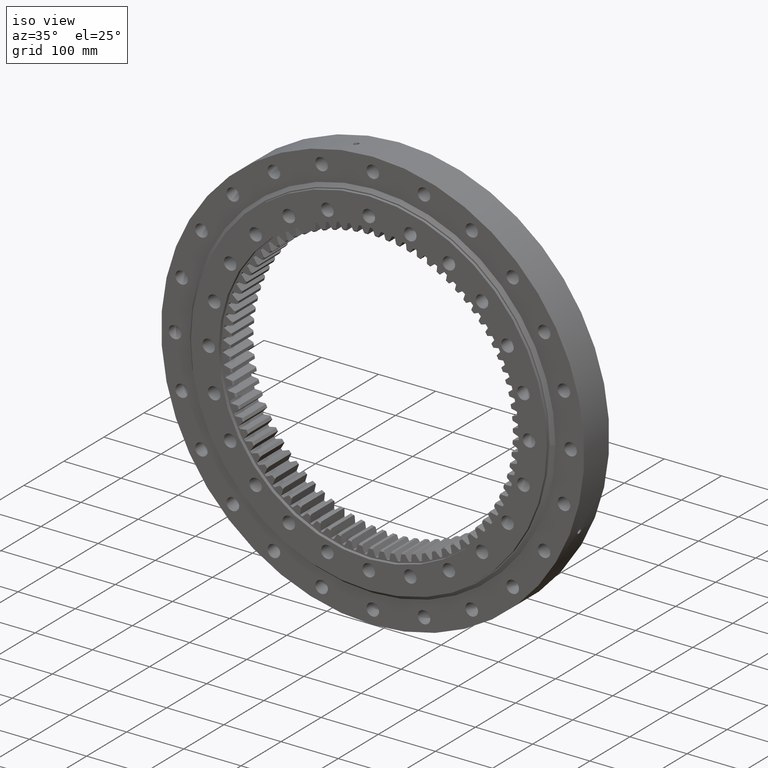
[diagram: clean part render]
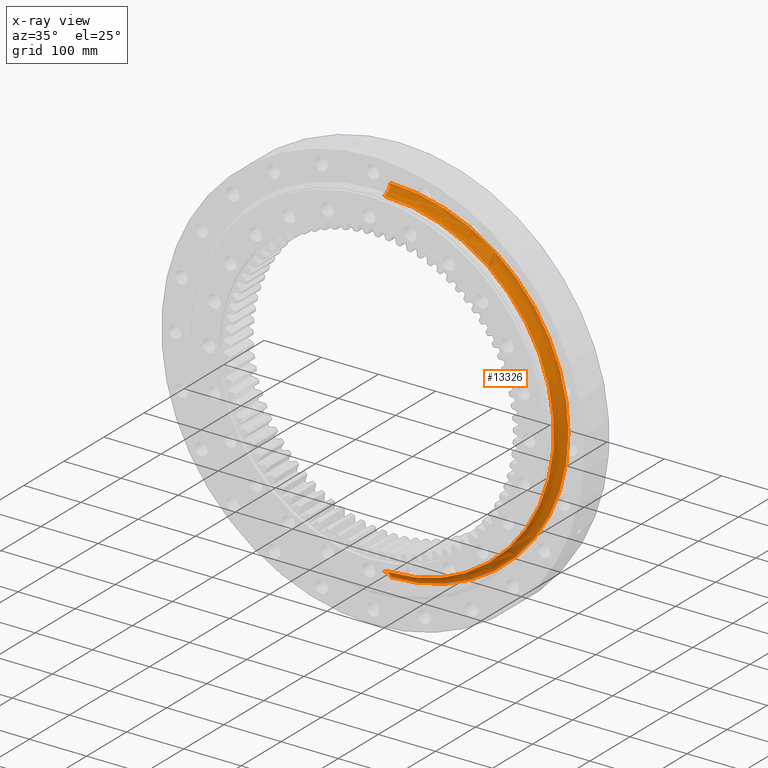
[diagram: x-ray — body ghosted, one internal face saturated and labeled with its STEP entity id]
A machine part, iso view, then the same camera in x-ray: the body is ghosted and one INTERNAL B-rep face — a face not visible from any outside direction — is saturated and labeled: STEP entity #13326.
In plain terms, the highlighted toroidal blend (fillet) surface has major radius 313 mm and minor (blend) radius 15.875 mm.
Its self-contained STEP definition (entity closure, byte-faithful):
#32 = VERTEX_POINT ( 'NONE', #18002 ) ;
#1731 = DIRECTION ( 'NONE',  ( 5.551115123125783900E-017, 6.684600557691706300E-017, 1.000000000000000000 ) ) ;
#1888 = AXIS2_PLACEMENT_3D ( 'NONE', #2487, #2452, #2404 ) ;
#2404 = DIRECTION ( 'NONE',  ( 7.914688832368750700E-017, 1.000000000000000000, 0.0000000000000000000 ) ) ;
#2452 = DIRECTION ( 'NONE',  ( 1.000000000000000000, -7.914688832368751900E-017, -5.551115123125783900E-017 ) ) ;
#2487 = CARTESIAN_POINT ( 'NONE',  ( 1.737499033538370300E-014, 2.765215221798461300E-014, 313.0000000000000000 ) ) ;
#2694 = CIRCLE ( 'NONE', #22000, 297.1249999999999400 ) ;
#3042 = DIRECTION ( 'NONE',  ( -7.914688832368751900E-017, -1.000000000000000000, 6.617654413443253200E-017 ) ) ;
#3116 = CARTESIAN_POINT ( 'NONE',  ( 1.250158783144392700E-015, 15.79542556406779500, -1.891470440542587500E-015 ) ) ;
#3272 = EDGE_CURVE ( 'NONE', #32, #13583, #2694, .T. ) ;
#3316 = CIRCLE ( 'NONE', #1888, 15.87500000000009800 ) ;
#3891 = EDGE_CURVE ( 'NONE', #13583, #18331, #3316, .T. ) ;
#4010 = AXIS2_PLACEMENT_3D ( 'NONE', #21204, #18400, #21348 ) ;
#4271 = CARTESIAN_POINT ( 'NONE',  ( -5.570643514869586400E-014, -1.377436441017014900E-014, -313.0000000000000000 ) ) ;
#4512 = DIRECTION ( 'NONE',  ( -1.000000000000000000, 7.914688832368753200E-017, 1.779758311459931700E-016 ) ) ;
#4601 = DIRECTION ( 'NONE',  ( 1.779758311459933000E-016, 0.0000000000000000000, 1.000000000000000000 ) ) ;
#4741 = ORIENTED_EDGE ( 'NONE', *, *, #3272, .F. ) ;
#5124 = ORIENTED_EDGE ( 'NONE', *, *, #18685, .T. ) ;
#5260 = CARTESIAN_POINT ( 'NONE',  ( 1.649375080958747900E-014, 8.883020697553645700E-015, 297.1249999999999400 ) ) ;
#5267 = ORIENTED_EDGE ( 'NONE', *, *, #19107, .T. ) ;
#5368 = CIRCLE ( 'NONE', #9497, 311.4125000000000200 ) ;
#5495 = ORIENTED_EDGE ( 'NONE', *, *, #3891, .F. ) ;
#8703 = CARTESIAN_POINT ( 'NONE',  ( -5.417373973360730100E-014, 15.79542556406777400, -311.4125000000005300 ) ) ;
#9138 = TOROIDAL_SURFACE ( 'NONE', #4010, 313.0000000000000000, 15.87500000000009800 ) ;
#9250 = CIRCLE ( 'NONE', #17228, 15.87500000000008300 ) ;
#9291 = FACE_OUTER_BOUND ( 'NONE', #10211, .T. ) ;
#9497 = AXIS2_PLACEMENT_3D ( 'NONE', #3116, #3042, #1731 ) ;
#10211 = EDGE_LOOP ( 'NONE', ( #4741, #5124, #5267, #5495 ) ) ;
#13326 = ADVANCED_FACE ( 'NONE', ( #9291 ), #9138, .F. ) ;
#13383 = VERTEX_POINT ( 'NONE', #8703 ) ;
#13583 = VERTEX_POINT ( 'NONE', #5260 ) ;
#15358 = CARTESIAN_POINT ( 'NONE',  ( 1.853702516594850500E-014, 15.79542556406781500, 311.4125000000005300 ) ) ;
#17228 = AXIS2_PLACEMENT_3D ( 'NONE', #4271, #4512, #4601 ) ;
#18002 = CARTESIAN_POINT ( 'NONE',  ( -5.288106882925321000E-014, 8.883020697553682000E-015, -297.1249999999999400 ) ) ;
#18331 = VERTEX_POINT ( 'NONE', #15358 ) ;
#18400 = DIRECTION ( 'NONE',  ( -7.914688832368751900E-017, -1.000000000000000000, 6.617654413443253200E-017 ) ) ;
#18637 = DIRECTION ( 'NONE',  ( 1.000000000000000000, -7.914688832368750700E-017, 0.0000000000000000000 ) ) ;
#18662 = DIRECTION ( 'NONE',  ( -7.914688832368751900E-017, -1.000000000000000000, 6.617654413443253200E-017 ) ) ;
#18685 = EDGE_CURVE ( 'NONE', #32, #13383, #9250, .T. ) ;
#18692 = CARTESIAN_POINT ( 'NONE',  ( 7.030634471262845500E-031, 8.883020697553664600E-015, -7.770757284029731100E-031 ) ) ;
#19107 = EDGE_CURVE ( 'NONE', #13383, #18331, #5368, .T. ) ;
#21204 = CARTESIAN_POINT ( 'NONE',  ( 5.491918609024614900E-031, 6.938893903907228400E-015, -6.484201358402970200E-031 ) ) ;
#21348 = DIRECTION ( 'NONE',  ( 5.551115123125783900E-017, 6.617654413443253200E-017, 1.000000000000000000 ) ) ;
#22000 = AXIS2_PLACEMENT_3D ( 'NONE', #18692, #18662, #18637 ) ;